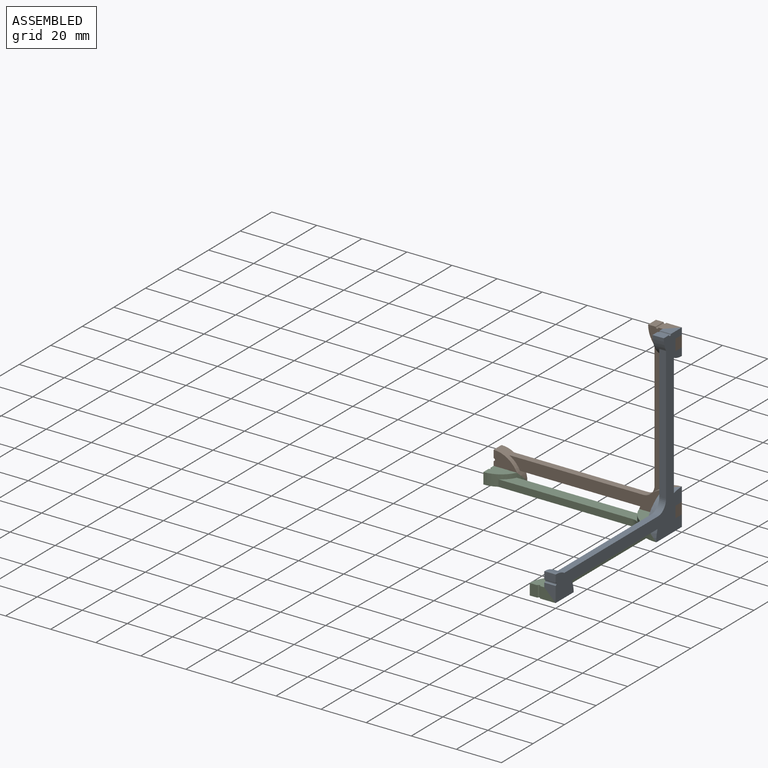
[diagram: assembled view]
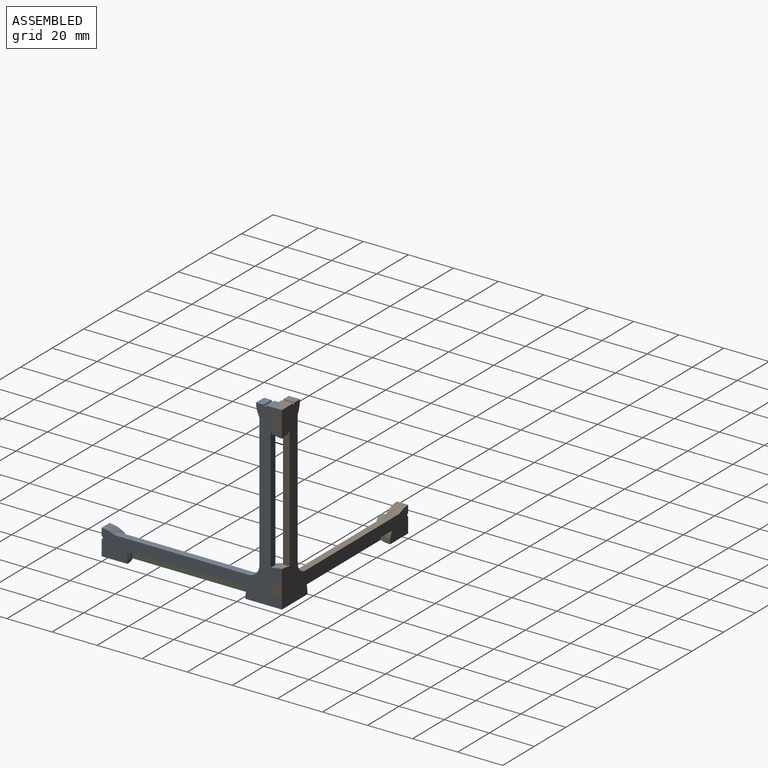
[diagram: assembled view, second angle]
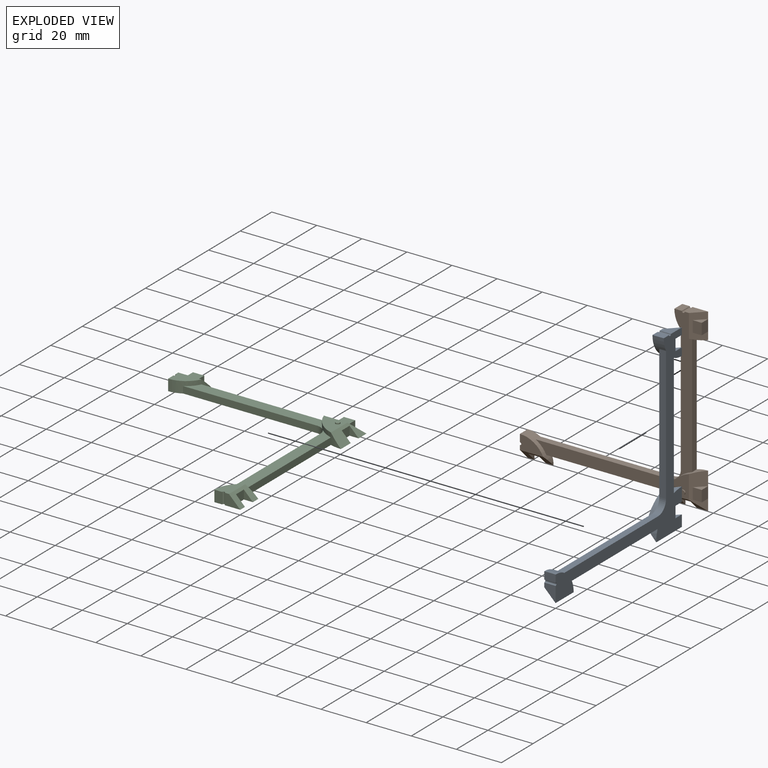
[diagram: exploded view]
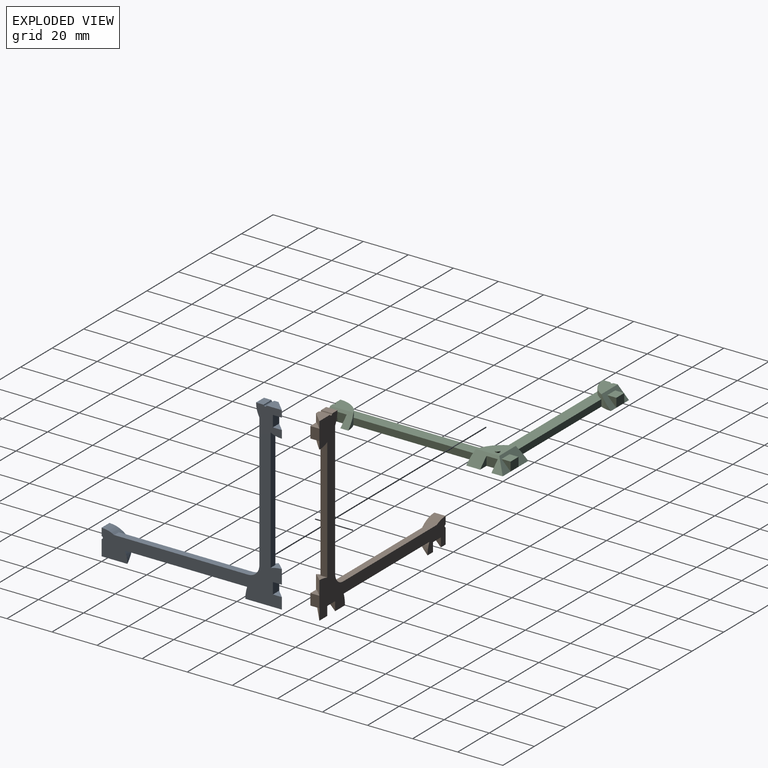
[diagram: exploded view, second angle]
ASSEMBLY  parts=3 mates=2
PART A: 40 faces, bbox 80x80x5.5 mm
  f0: plane 10.42x10.42mm, normal (0,0,1), area 68.8mm2, adj f4,f5,f24,f30
  f1: plane 62.93x6.46mm, normal (0,0,1), area 287mm2, adj f13,f14,f22,f23,f24
  f2: plane 62.93x6.46mm, normal (0,0,1), area 287mm2, adj f6,f7,f12,f13,f24
  f3: plane 4x4mm, normal (1,0,0), area 8mm2, adj f4,f26,f27
  f4: plane 16.21x5mm, normal (0,0.71,0.71), area 66.8mm2, adj f0,f3,f5,f24,f25,f26,f27
  f5: plane 16.21x5mm, normal (-0.71,0,0.71), area 66.8mm2, adj f0,f4,f24,f27,f33,f34,f35
  f6: plane 54.26x3mm, normal (-1,0,0), area 162.8mm2, adj f2,f7,f24,f27
  f7: cylinder r=11.46mm len=11.46mm, axis (0,0,-1), area 56.4mm2, adj f2,f6,f8,f11,f12,f27,f29
  f8: plane 11.46x5mm, normal (-0.71,0,0.71), area 50.1mm2, adj f7,f9,f27,f29,f36,f37,f39
  f9: plane 6.9x5mm, normal (0,-1,0), area 22mm2, adj f8,f10,f27,f29
  f10: cylinder r=0.6mm len=5mm, axis (0,0,-1), area 9.4mm2, adj f9,f11,f27,f29
  f11: plane 5x3.36mm, normal (0,-1,0), area 16.8mm2, adj f7,f10,f27,f29
  f12: plane 59.39x3mm, normal (1,0,0), area 178.2mm2, adj f2,f7,f13,f27
  f13: cylinder r=5mm len=5mm, axis (0,0,-1), area 23.6mm2, adj f1,f2,f12,f14,f27
  f14: plane 59.39x3mm, normal (0,-1,0), area 178.2mm2, adj f1,f13,f22,f27
  f15: plane 5x3.36mm, normal (1,0,0), area 16.8mm2, adj f16,f22,f27,f28
  f16: cylinder r=0.6mm len=5mm, axis (0,0,-1), area 9.4mm2, adj f15,f17,f27,f28
  f17: plane 6.9x5mm, normal (1,0,0), area 22mm2, adj f16,f21,f27,f28
  f18: plane 4x4mm, normal (-1,0,0), area 8mm2, adj f19,f21,f27
  f19: plane 5x4mm, normal (0,1,0), area 20mm2, adj f18,f20,f21,f27
  f20: plane 4x4mm, normal (1,0,0), area 8mm2, adj f19,f21,f27
  f21: plane 11.46x5mm, normal (0,0.71,0.71), area 50.1mm2, adj f17,f18,f19,f20,f22,f27,f28
  f22: cylinder r=11.46mm len=11.46mm, axis (0,0,-1), area 56.4mm2, adj f1,f14,f15,f21,f23,f27,f28
  f23: plane 54.26x3mm, normal (0,1,0), area 162.8mm2, adj f1,f22,f24,f27
  f24: cylinder r=16.21mm len=16.21mm, axis (0,0,-1), area 56.2mm2, adj f0,f1,f2,f4,f5,f6,f23,f27
  f25: plane 4x4mm, normal (-1,0,0), area 8mm2, adj f4,f26,f27
  f26: plane 5x4mm, normal (0,1,0), area 20mm2, adj f3,f4,f25,f27
  f27: plane 80x80mm, normal (0,0,-1), area 945.8mm2, adj f3,f4,f5,f6,f7,f8,f9,f10
  f28: plane 10.32x6.46mm, normal (0,0,1), area 47.2mm2, adj f15,f16,f17,f21,f22
  f29: plane 10.32x6.46mm, normal (0,0,1), area 47.2mm2, adj f7,f8,f9,f10,f11
  f30: cylinder r=1mm len=2mm, axis (0,0,-1), area 3.1mm2, adj f0,f31
  f31: plane 2x2mm, normal (0,0,1), area 3.1mm2, adj f30
  f32: plane 5x4mm, normal (-1,0,0), area 20mm2, adj f27,f33,f34,f35
  f33: plane 4x4mm, normal (0,-1,0), area 8mm2, adj f5,f32,f35
  f34: plane 4x4mm, normal (0,1,0), area 8mm2, adj f5,f32,f35
  f35: plane 5x4mm, normal (0,0,1), area 20mm2, adj f5,f32,f33,f34
  f36: plane 4x4mm, normal (0,1,0), area 8mm2, adj f8,f38,f39
  f37: plane 4x4mm, normal (0,-1,0), area 8mm2, adj f8,f38,f39
  f38: plane 5x4mm, normal (-1,0,0), area 20mm2, adj f27,f36,f37,f39
  f39: plane 5x4mm, normal (0,0,1), area 20mm2, adj f8,f36,f37,f38
PART B: same geometry as A
PART C: same geometry as A
PLACE A rot(axis=(0,-1,0),90deg) t=(0,-80,80)mm
PLACE B rot(axis=(0,-0.71,0.71),180deg) t=(-80,0,80)mm
PLACE C rot(axis=(0,0,-1),90deg) t=(-80,-80,0)mm
MATE fastened A.f26 <-> B.f35  axis (0,1,0) through (0,-4,7.5)mm
MATE fastened A.f35 <-> C.f26  axis (-1,0,0) through (-4,-7.5,0)mm
